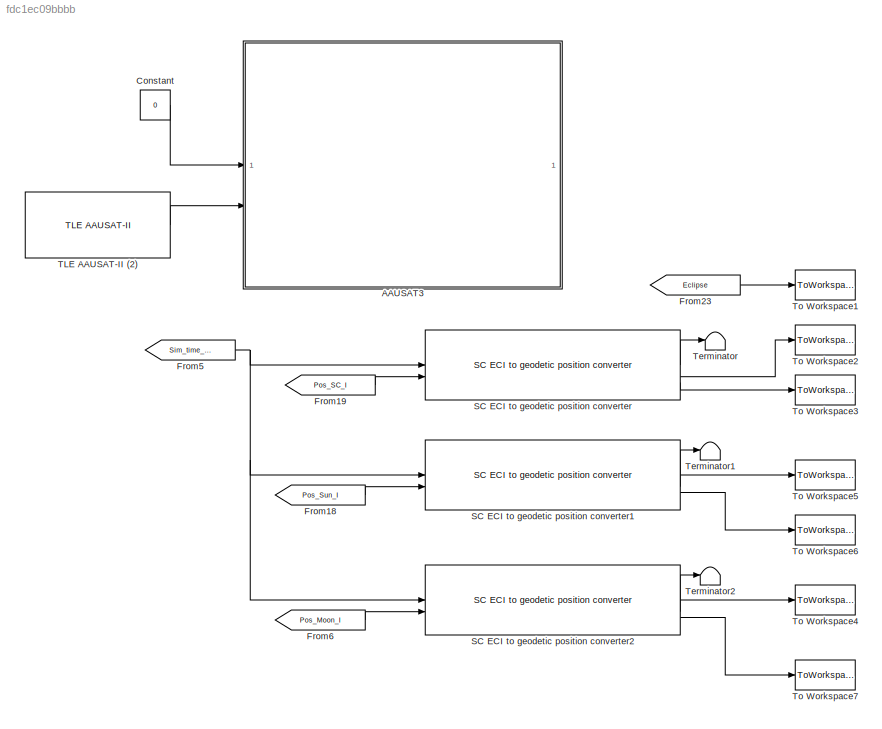
MODEL mdl_fdc1ec09bbbb
KIND model
CONFIG AbsTol = auto
CONFIG EnableMultiTasking = on
CONFIG FixedStep = auto
CONFIG MaxStep = 1
CONFIG MinStep = auto
CONFIG RelTol = 1e-3
CONFIG SampleTimeConstraint = Unconstrained
CONFIG SolverName = ode45
CONFIG StartTime = 0.0
CONFIG StopTime = 2000.0
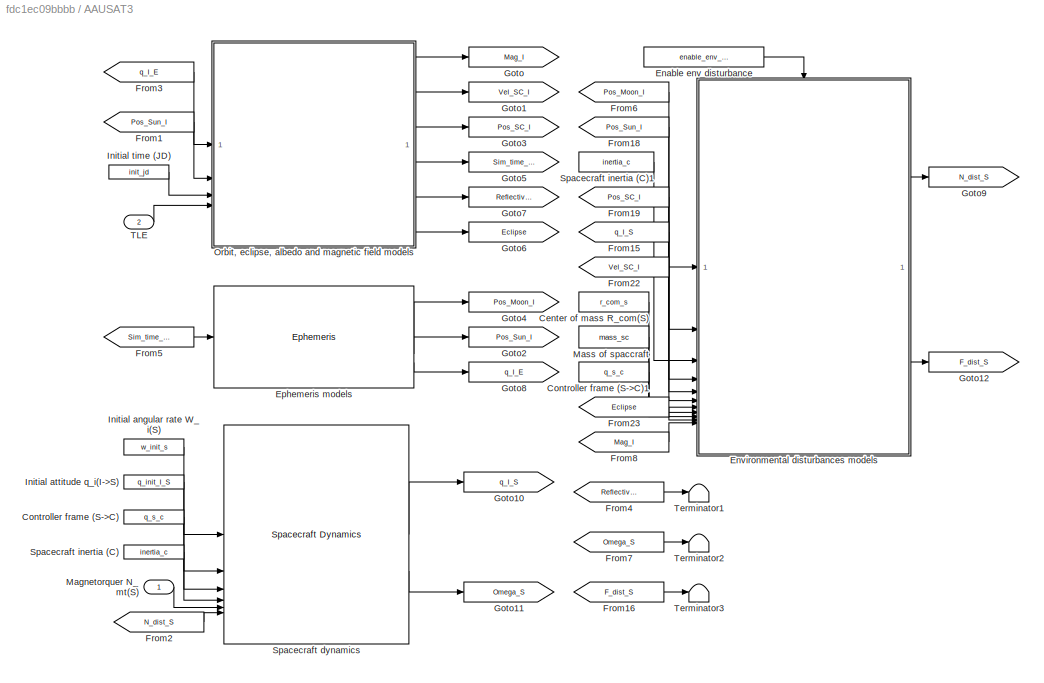
BLOCK [SubSystem] AAUSAT3
  ShowPortLabels = none
BLOCK [Constant] AAUSAT3/Center of mass R_com(S)
  Value = r_com_s
BLOCK [Constant] AAUSAT3/Controller frame (S->C)
  NameLocation = top
  Value = q_s_c
BLOCK [Constant] AAUSAT3/Controller frame (S->C)1
  Value = q_s_c
BLOCK [Constant] AAUSAT3/Enable env disturbance
  Value = enable_env_disturbance
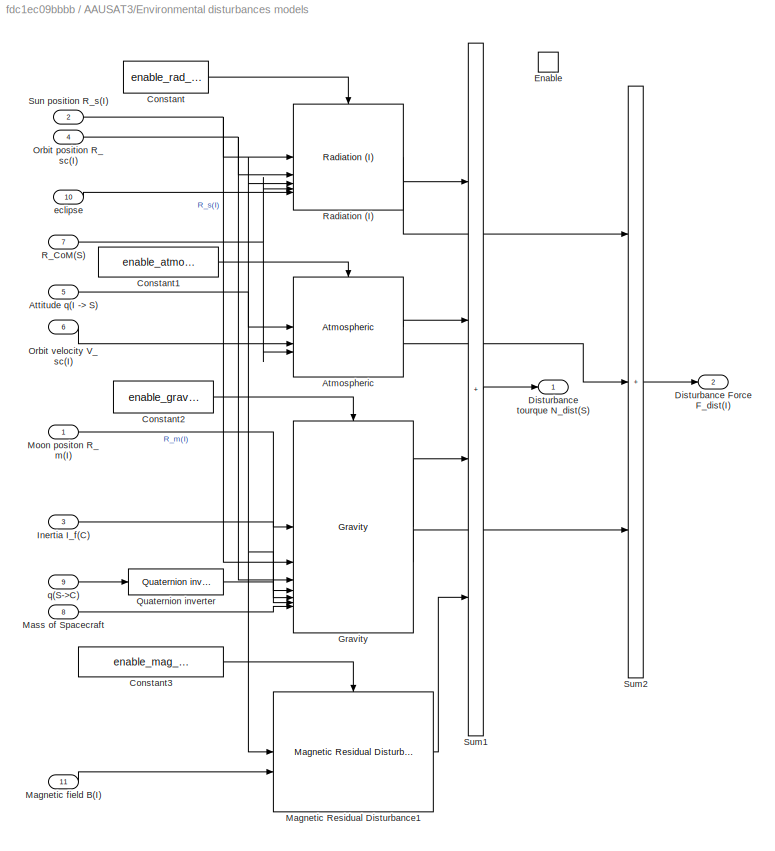
BLOCK [SubSystem] AAUSAT3/Environmental disturbances models
  AncestorBlock = aausat3_lib/Disturbances/Environment Disturbances
BLOCK [Reference] AAUSAT3/Environmental disturbances models/Atmospheric  REF=aausat3_lib/Disturbances/Atmospheric  (lib defined in mdl_4157f6465749, slx_d9305f96731e)
  SourceBlock = aausat3_lib/Disturbances/Atmospheric
  SourceProductName = AAUSAT3
BLOCK [Inport] AAUSAT3/Environmental disturbances models/Attitude q(I -> S)
  Port = 5
BLOCK [Constant] AAUSAT3/Environmental disturbances models/Constant
  Value = enable_rad_dist
BLOCK [Constant] AAUSAT3/Environmental disturbances models/Constant1
  Value = enable_atmospheric_dist
BLOCK [Constant] AAUSAT3/Environmental disturbances models/Constant2
  Value = enable_gravity_dist
BLOCK [Constant] AAUSAT3/Environmental disturbances models/Constant3
  Value = enable_mag_residual_dist
BLOCK [Outport] AAUSAT3/Environmental disturbances models/Disturbance Force F_dist(I)
  Port = 2
BLOCK [Outport] AAUSAT3/Environmental disturbances models/Disturbance tourque N_dist(S)
BLOCK [EnablePort] AAUSAT3/Environmental disturbances models/Enable
BLOCK [Reference] AAUSAT3/Environmental disturbances models/Gravity  REF=aausat3_lib/Disturbances/Gravity  (lib defined in mdl_4157f6465749, slx_d9305f96731e)
  SourceBlock = aausat3_lib/Disturbances/Gravity
  SourceProductName = AAUSAT3
BLOCK [Inport] AAUSAT3/Environmental disturbances models/Inertia I_f(C)
  NameLocation = top
  Port = 3
BLOCK [Reference] AAUSAT3/Environmental disturbances models/Magnetic Residual Disturbance1  REF=aausat3_lib/Disturbances/Magnetic Residual Disturbance  (lib defined in mdl_4157f6465749, slx_d9305f96731e)
  SourceBlock = aausat3_lib/Disturbances/Magnetic Residual Disturbance
  SourceProductName = AAUSAT3
BLOCK [Inport] AAUSAT3/Environmental disturbances models/Magnetic field B(I)
  Port = 11
BLOCK [Inport] AAUSAT3/Environmental disturbances models/Mass of Spacecraft
  Port = 8
BLOCK [Inport] AAUSAT3/Environmental disturbances models/Moon positon R_m(I)
  NameLocation = top
BLOCK [Inport] AAUSAT3/Environmental disturbances models/Orbit position R_sc(I)
  Port = 4
BLOCK [Inport] AAUSAT3/Environmental disturbances models/Orbit velocity V_sc(I)
  Port = 6
BLOCK [Reference] AAUSAT3/Environmental disturbances models/Quaternion inverter  REF=aausat3_lib/Math Utilities/Quaternion operations/Quaternion inverter  (lib defined in mdl_4157f6465749, slx_d9305f96731e)
  SourceBlock = aausat3_lib/Math Utilities/Quaternion operations/Quaternion inverter
  SourceProductName = AAUSAT3
  SourceType = SubSystem
BLOCK [Inport] AAUSAT3/Environmental disturbances models/R_CoM(S)
  Port = 7
BLOCK [Reference] AAUSAT3/Environmental disturbances models/Radiation (I)  REF=aausat3_lib/Disturbances/Radiation (I)  (lib defined in mdl_4157f6465749, slx_d9305f96731e)
  SourceBlock = aausat3_lib/Disturbances/Radiation (I)
  SourceProductName = AAUSAT3
BLOCK [Sum] AAUSAT3/Environmental disturbances models/Sum1
  IconShape = rectangular
  Inputs = ++++
  SaturateOnIntegerOverflow = on
BLOCK [Sum] AAUSAT3/Environmental disturbances models/Sum2
  IconShape = rectangular
  Inputs = +++
  SaturateOnIntegerOverflow = on
BLOCK [Inport] AAUSAT3/Environmental disturbances models/Sun position R_s(I)
  NameLocation = top
  Port = 2
BLOCK [Inport] AAUSAT3/Environmental disturbances models/eclipse
  Port = 10
BLOCK [Inport] AAUSAT3/Environmental disturbances models/q(S->C)
  NameLocation = top
  Port = 9
BLOCK [Reference] AAUSAT3/Ephemeris models  REF=aausat3_lib/Orbit and Ephemeris/Ephemeris  (lib defined in mdl_4157f6465749, slx_d9305f96731e)
  SourceBlock = aausat3_lib/Orbit and Ephemeris/Ephemeris
  SourceProductName = AAUSAT3
  SourceType = SubSystem
BLOCK [From] AAUSAT3/From1
  CloseFcn = tagdialog Close
  GotoTag = Pos_Sun_I
  TagVisibility = global
BLOCK [From] AAUSAT3/From15
  CloseFcn = tagdialog Close
  GotoTag = q_I_S
  TagVisibility = global
BLOCK [From] AAUSAT3/From16
  CloseFcn = tagdialog Close
  GotoTag = F_dist_S
  TagVisibility = global
BLOCK [From] AAUSAT3/From18
  CloseFcn = tagdialog Close
  GotoTag = Pos_Sun_I
  TagVisibility = global
BLOCK [From] AAUSAT3/From19
  CloseFcn = tagdialog Close
  GotoTag = Pos_SC_I
  TagVisibility = global
BLOCK [From] AAUSAT3/From2
  CloseFcn = tagdialog Close
  GotoTag = N_dist_S
  TagVisibility = global
BLOCK [From] AAUSAT3/From22
  CloseFcn = tagdialog Close
  GotoTag = Vel_SC_I
  TagVisibility = global
BLOCK [From] AAUSAT3/From23
  CloseFcn = tagdialog Close
  GotoTag = Eclipse
  TagVisibility = global
BLOCK [From] AAUSAT3/From3
  CloseFcn = tagdialog Close
  GotoTag = q_I_E
  TagVisibility = global
BLOCK [From] AAUSAT3/From4
  CloseFcn = tagdialog Close
  GotoTag = Reflectivity
  TagVisibility = global
BLOCK [From] AAUSAT3/From5
  CloseFcn = tagdialog Close
  GotoTag = Sim_time_JD
  TagVisibility = global
BLOCK [From] AAUSAT3/From6
  CloseFcn = tagdialog Close
  GotoTag = Pos_Moon_I
  TagVisibility = global
BLOCK [From] AAUSAT3/From7
  CloseFcn = tagdialog Close
  GotoTag = Omega_S
  TagVisibility = global
BLOCK [From] AAUSAT3/From8
  CloseFcn = tagdialog Close
  GotoTag = Mag_I
  TagVisibility = global
BLOCK [Goto] AAUSAT3/Goto
  GotoTag = Mag_I
  TagVisibility = global
BLOCK [Goto] AAUSAT3/Goto1
  GotoTag = Vel_SC_I
  TagVisibility = global
BLOCK [Goto] AAUSAT3/Goto10
  GotoTag = q_I_S
  TagVisibility = global
BLOCK [Goto] AAUSAT3/Goto11
  GotoTag = Omega_S
  TagVisibility = global
BLOCK [Goto] AAUSAT3/Goto12
  GotoTag = F_dist_S
  TagVisibility = global
BLOCK [Goto] AAUSAT3/Goto2
  GotoTag = Pos_Sun_I
  TagVisibility = global
BLOCK [Goto] AAUSAT3/Goto3
  GotoTag = Pos_SC_I
  TagVisibility = global
BLOCK [Goto] AAUSAT3/Goto4
  GotoTag = Pos_Moon_I
  TagVisibility = global
BLOCK [Goto] AAUSAT3/Goto5
  GotoTag = Sim_time_JD
  TagVisibility = global
BLOCK [Goto] AAUSAT3/Goto6
  GotoTag = Eclipse
  TagVisibility = global
BLOCK [Goto] AAUSAT3/Goto7
  GotoTag = Reflectivity
  TagVisibility = global
BLOCK [Goto] AAUSAT3/Goto8
  GotoTag = q_I_E
  TagVisibility = global
BLOCK [Goto] AAUSAT3/Goto9
  GotoTag = N_dist_S
  TagVisibility = global
BLOCK [Constant] AAUSAT3/Initial angular rate W_i(S)
  NameLocation = top
  Value = w_init_s
BLOCK [Constant] AAUSAT3/Initial attitude q_i(I->S)
  NameLocation = top
  Value = q_init_I_S
BLOCK [Constant] AAUSAT3/Initial time (JD)
  NameLocation = top
  Value = init_jd
BLOCK [Inport] AAUSAT3/Magnetorquer N_mt(S)
  NameLocation = top
BLOCK [Constant] AAUSAT3/Mass of spaccraft
  Value = mass_sc
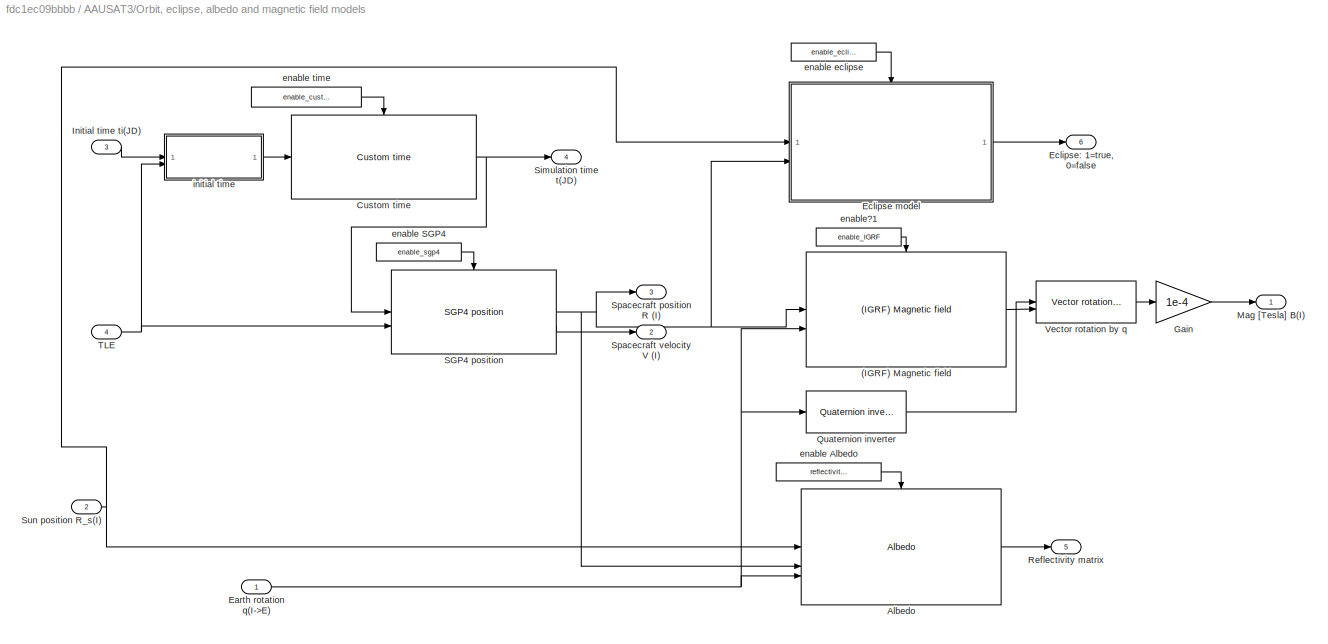
BLOCK [SubSystem] AAUSAT3/Orbit, eclipse, albedo and magnetic field models
  AncestorBlock = aausat3_lib/Orbit and Ephemeris/Orbit and Magnetic field models
BLOCK [Reference] AAUSAT3/Orbit, eclipse, albedo and magnetic field models/(IGRF) Magnetic field  REF=aausat3_lib/Orbit and Ephemeris/(IGRF) Magnetic field  (lib defined in mdl_4157f6465749, slx_d9305f96731e)
  SourceBlock = aausat3_lib/Orbit and Ephemeris/(IGRF) Magnetic field
  SourceProductName = AAUSAT3
  SourceType = SubSystem
BLOCK [Reference] AAUSAT3/Orbit, eclipse, albedo and magnetic field models/Albedo  REF=aausat3_lib/Orbit and Ephemeris/Albedo  (lib defined in mdl_4157f6465749, slx_d9305f96731e)
  SourceBlock = aausat3_lib/Orbit and Ephemeris/Albedo
  SourceProductName = AAUSAT3
BLOCK [Reference] AAUSAT3/Orbit, eclipse, albedo and magnetic field models/Custom time  REF=aausat3_lib/Orbit and Ephemeris/Custom time  (lib defined in mdl_4157f6465749, slx_d9305f96731e)
  SourceBlock = aausat3_lib/Orbit and Ephemeris/Custom time
  SourceProductName = AAUSAT3
  SourceType = SubSystem
BLOCK [Inport] AAUSAT3/Orbit, eclipse, albedo and magnetic field models/Earth rotation q(I->E)
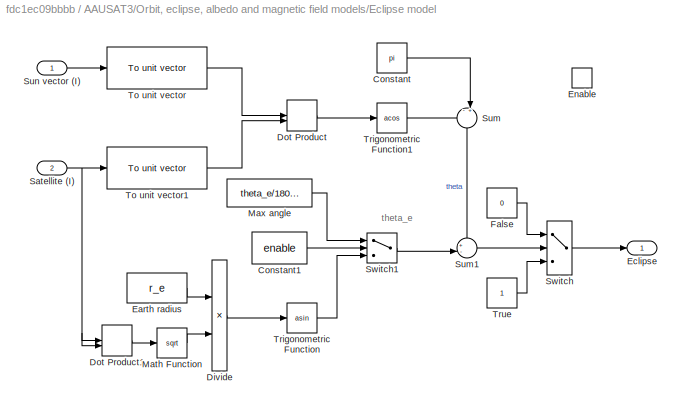
BLOCK [SubSystem] AAUSAT3/Orbit, eclipse, albedo and magnetic field models/Eclipse model
  AncestorBlock = aausat3_lib/Orbit and Ephemeris/Eclipse model
BLOCK [Constant] AAUSAT3/Orbit, eclipse, albedo and magnetic field models/Eclipse model/Constant
  Value = pi
BLOCK [Constant] AAUSAT3/Orbit, eclipse, albedo and magnetic field models/Eclipse model/Constant1
  Value = enable
BLOCK [Product] AAUSAT3/Orbit, eclipse, albedo and magnetic field models/Eclipse model/Divide
  Inputs = */
BLOCK [DotProduct] AAUSAT3/Orbit, eclipse, albedo and magnetic field models/Eclipse model/Dot Product
  OutDataTypeStr = Inherit: Inherit via internal rule
BLOCK [DotProduct] AAUSAT3/Orbit, eclipse, albedo and magnetic field models/Eclipse model/Dot Product1
  OutDataTypeStr = Inherit: Inherit via internal rule
BLOCK [Constant] AAUSAT3/Orbit, eclipse, albedo and magnetic field models/Eclipse model/Earth radius
  Value = r_e
BLOCK [Outport] AAUSAT3/Orbit, eclipse, albedo and magnetic field models/Eclipse model/Eclipse
  PortDimensions = 1
BLOCK [EnablePort] AAUSAT3/Orbit, eclipse, albedo and magnetic field models/Eclipse model/Enable
BLOCK [Constant] AAUSAT3/Orbit, eclipse, albedo and magnetic field models/Eclipse model/False
  Value = 0
BLOCK [Math] AAUSAT3/Orbit, eclipse, albedo and magnetic field models/Eclipse model/Math Function
  Operator = sqrt
  SignedPower = on
BLOCK [Constant] AAUSAT3/Orbit, eclipse, albedo and magnetic field models/Eclipse model/Max angle
  Value = theta_e/180*pi
BLOCK [Inport] AAUSAT3/Orbit, eclipse, albedo and magnetic field models/Eclipse model/Satellite (I)
  Port = 2
BLOCK [Sum] AAUSAT3/Orbit, eclipse, albedo and magnetic field models/Eclipse model/Sum
  Inputs = -+|
  NameLocation = left
BLOCK [Sum] AAUSAT3/Orbit, eclipse, albedo and magnetic field models/Eclipse model/Sum1
  Inputs = +-|
BLOCK [Inport] AAUSAT3/Orbit, eclipse, albedo and magnetic field models/Eclipse model/Sun vector (I)
BLOCK [Switch] AAUSAT3/Orbit, eclipse, albedo and magnetic field models/Eclipse model/Switch
  InputSameDT = off
  SaturateOnIntegerOverflow = off
BLOCK [Switch] AAUSAT3/Orbit, eclipse, albedo and magnetic field models/Eclipse model/Switch1
  Criteria = u2 > Threshold
  InputSameDT = off
  SaturateOnIntegerOverflow = off
BLOCK [Reference] AAUSAT3/Orbit, eclipse, albedo and magnetic field models/Eclipse model/To unit vector  REF=aausat3_lib/Math Utilities/Vector operations/To unit vector  (lib defined in mdl_4157f6465749, slx_d9305f96731e)
  SourceBlock = aausat3_lib/Math Utilities/Vector operations/To unit vector
  SourceProductName = AAUSAT3
  SourceType = SubSystem
BLOCK [Reference] AAUSAT3/Orbit, eclipse, albedo and magnetic field models/Eclipse model/To unit vector1  REF=aausat3_lib/Math Utilities/Vector operations/To unit vector  (lib defined in mdl_4157f6465749, slx_d9305f96731e)
  SourceBlock = aausat3_lib/Math Utilities/Vector operations/To unit vector
  SourceProductName = AAUSAT3
  SourceType = SubSystem
BLOCK [Trigonometry] AAUSAT3/Orbit, eclipse, albedo and magnetic field models/Eclipse model/Trigonometric Function
  Operator = asin
BLOCK [Trigonometry] AAUSAT3/Orbit, eclipse, albedo and magnetic field models/Eclipse model/Trigonometric Function1
  Operator = acos
BLOCK [Constant] AAUSAT3/Orbit, eclipse, albedo and magnetic field models/Eclipse model/True
BLOCK [Outport] AAUSAT3/Orbit, eclipse, albedo and magnetic field models/Eclipse: 1=true, 0=false
  Port = 6
  PortDimensions = 1
BLOCK [Gain] AAUSAT3/Orbit, eclipse, albedo and magnetic field models/Gain
  Gain = 1e-4
BLOCK [Inport] AAUSAT3/Orbit, eclipse, albedo and magnetic field models/Initial time ti(JD)
  Port = 3
BLOCK [Outport] AAUSAT3/Orbit, eclipse, albedo and magnetic field models/Mag [Tesla] B(I)
BLOCK [Reference] AAUSAT3/Orbit, eclipse, albedo and magnetic field models/Quaternion inverter  REF=aausat3_lib/Math Utilities/Quaternion operations/Quaternion inverter  (lib defined in mdl_4157f6465749, slx_d9305f96731e)
  SourceBlock = aausat3_lib/Math Utilities/Quaternion operations/Quaternion inverter
  SourceProductName = AAUSAT3
  SourceType = SubSystem
BLOCK [Outport] AAUSAT3/Orbit, eclipse, albedo and magnetic field models/Reflectivity matrix
  Port = 5
BLOCK [Reference] AAUSAT3/Orbit, eclipse, albedo and magnetic field models/SGP4 position  REF=aausat3_lib/Orbit and Ephemeris/SGP4 position  (lib defined in mdl_4157f6465749, slx_d9305f96731e)
  SourceBlock = aausat3_lib/Orbit and Ephemeris/SGP4 position
  SourceProductName = AAUSAT3
  SourceType = SubSystem
BLOCK [Outport] AAUSAT3/Orbit, eclipse, albedo and magnetic field models/Simulation time t(JD)
  Port = 4
BLOCK [Outport] AAUSAT3/Orbit, eclipse, albedo and magnetic field models/Spacecraft position R (I)
  NameLocation = top
  Port = 3
BLOCK [Outport] AAUSAT3/Orbit, eclipse, albedo and magnetic field models/Spacecraft velocity V (I)
  Port = 2
BLOCK [Inport] AAUSAT3/Orbit, eclipse, albedo and magnetic field models/Sun position R_s(I)
  Port = 2
BLOCK [Inport] AAUSAT3/Orbit, eclipse, albedo and magnetic field models/TLE
  Port = 4
BLOCK [Reference] AAUSAT3/Orbit, eclipse, albedo and magnetic field models/Vector rotation by q  REF=aausat3_lib/Math Utilities/Quaternion operations/Vector rotation by q  (lib defined in mdl_4157f6465749, slx_d9305f96731e)
  SourceBlock = aausat3_lib/Math Utilities/Quaternion operations/Vector rotation by q
  SourceProductName = AAUSAT3
  SourceType = SubSystem
BLOCK [Constant] AAUSAT3/Orbit, eclipse, albedo and magnetic field models/enable Albedo
  NameLocation = top
  Value = reflectivity_enabled
BLOCK [Constant] AAUSAT3/Orbit, eclipse, albedo and magnetic field models/enable SGP4
  NameLocation = top
  Value = enable_sgp4
BLOCK [Constant] AAUSAT3/Orbit, eclipse, albedo and magnetic field models/enable eclipse
  NameLocation = top
  Value = enable_eclipse
BLOCK [Constant] AAUSAT3/Orbit, eclipse, albedo and magnetic field models/enable time
  NameLocation = top
  Value = enable_custom_time
BLOCK [Constant] AAUSAT3/Orbit, eclipse, albedo and magnetic field models/enable?1
  NameLocation = top
  Value = enable_IGRF
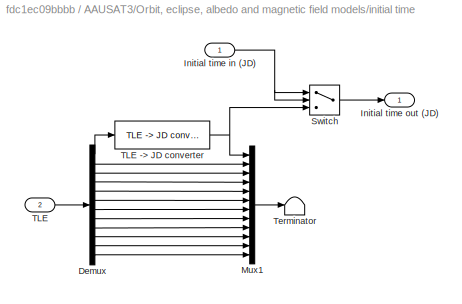
BLOCK [SubSystem] AAUSAT3/Orbit, eclipse, albedo and magnetic field models/initial time
BLOCK [Demux] AAUSAT3/Orbit, eclipse, albedo and magnetic field models/initial time/Demux
  Outputs = 12
BLOCK [Inport] AAUSAT3/Orbit, eclipse, albedo and magnetic field models/initial time/Initial time in (JD)
BLOCK [Outport] AAUSAT3/Orbit, eclipse, albedo and magnetic field models/initial time/Initial time out (JD)
BLOCK [Mux] AAUSAT3/Orbit, eclipse, albedo and magnetic field models/initial time/Mux1
  DisplayOption = bar
  Inputs = 12
BLOCK [Switch] AAUSAT3/Orbit, eclipse, albedo and magnetic field models/initial time/Switch
  Criteria = u2 > Threshold
  InputSameDT = off
  SaturateOnIntegerOverflow = off
BLOCK [Inport] AAUSAT3/Orbit, eclipse, albedo and magnetic field models/initial time/TLE
  Port = 2
BLOCK [Reference] AAUSAT3/Orbit, eclipse, albedo and magnetic field models/initial time/TLE -> JD converter  REF=aausat3_lib/Other Model Utilities/TLE -> JD converter  (lib defined in mdl_4157f6465749, slx_d9305f96731e)
  NameLocation = top
  SourceBlock = aausat3_lib/Other Model Utilities/TLE -> JD converter
  SourceProductName = AAUSAT3
  SourceType = SubSystem
BLOCK [Terminator] AAUSAT3/Orbit, eclipse, albedo and magnetic field models/initial time/Terminator
BLOCK [Reference] AAUSAT3/Spacecraft dynamics  REF=aausat3_lib/Dynamics and Kinematics/Spacecraft Dynamics  (lib defined in mdl_4157f6465749, slx_d9305f96731e)
  SourceBlock = aausat3_lib/Dynamics and Kinematics/Spacecraft Dynamics
  SourceProductName = AAUSAT3
  SourceType = SubSystem
BLOCK [Constant] AAUSAT3/Spacecraft inertia (C)
  NameLocation = top
  Value = inertia_c
BLOCK [Constant] AAUSAT3/Spacecraft inertia (C)1
  Value = inertia_c
BLOCK [Inport] AAUSAT3/TLE
  NameLocation = top
  Port = 2
BLOCK [Terminator] AAUSAT3/Terminator1
BLOCK [Terminator] AAUSAT3/Terminator2
BLOCK [Terminator] AAUSAT3/Terminator3
BLOCK [Constant] Constant
  Value = 0
BLOCK [From] From18
  CloseFcn = tagdialog Close
  GotoTag = Pos_Sun_I
  TagVisibility = global
BLOCK [From] From19
  CloseFcn = tagdialog Close
  GotoTag = Pos_SC_I
  TagVisibility = global
BLOCK [From] From23
  CloseFcn = tagdialog Close
  GotoTag = Eclipse
  TagVisibility = global
BLOCK [From] From5
  CloseFcn = tagdialog Close
  GotoTag = Sim_time_JD
  TagVisibility = global
BLOCK [From] From6
  CloseFcn = tagdialog Close
  GotoTag = Pos_Moon_I
  TagVisibility = global
BLOCK [Reference] SC ECI to geodetic position converter  REF=aausat3_lib/Other Model Utilities/SC ECI to geodetic position converter  (lib defined in mdl_4157f6465749, slx_d9305f96731e)
  SourceBlock = aausat3_lib/Other Model Utilities/SC ECI to geodetic position converter
  SourceProductName = AAUSAT3
BLOCK [Reference] SC ECI to geodetic position converter1  REF=aausat3_lib/Other Model Utilities/SC ECI to geodetic position converter  (lib defined in mdl_4157f6465749, slx_d9305f96731e)
  SourceBlock = aausat3_lib/Other Model Utilities/SC ECI to geodetic position converter
  SourceProductName = AAUSAT3
BLOCK [Reference] SC ECI to geodetic position converter2  REF=aausat3_lib/Other Model Utilities/SC ECI to geodetic position converter  (lib defined in mdl_4157f6465749, slx_d9305f96731e)
  SourceBlock = aausat3_lib/Other Model Utilities/SC ECI to geodetic position converter
  SourceProductName = AAUSAT3
BLOCK [Reference] TLE AAUSAT-II (2)  REF=aausat3_lib/Orbit and Ephemeris/TLE AAUSAT-II  (lib defined in mdl_4157f6465749, slx_d9305f96731e)
  SourceBlock = aausat3_lib/Orbit and Ephemeris/TLE AAUSAT-II
  SourceProductName = AAUSAT3
BLOCK [Terminator] Terminator
BLOCK [Terminator] Terminator1
BLOCK [Terminator] Terminator2
BLOCK [ToWorkspace] To Workspace1
  MaxDataPoints = inf
  SampleTime = 1
  VariableName = eclipse
BLOCK [ToWorkspace] To Workspace2
  MaxDataPoints = inf
  SampleTime = 1
  VariableName = sc_longitude
BLOCK [ToWorkspace] To Workspace3
  MaxDataPoints = inf
  SampleTime = 1
  VariableName = sc_latitude
BLOCK [ToWorkspace] To Workspace4
  MaxDataPoints = inf
  SampleTime = 1
  VariableName = moon_longitude
BLOCK [ToWorkspace] To Workspace5
  MaxDataPoints = inf
  SampleTime = 1
  VariableName = sun_longitude
BLOCK [ToWorkspace] To Workspace6
  MaxDataPoints = inf
  SampleTime = 1
  VariableName = sun_latitude
BLOCK [ToWorkspace] To Workspace7
  MaxDataPoints = inf
  SampleTime = 1
  VariableName = moon_latitude
ANNOTATION AAUSAT3/Orbit, eclipse, albedo and magnetic field models/Eclipse model: theta_e
LINE AAUSAT3/Center of mass R_com(S):1 -> AAUSAT3/Environmental disturbances models:7
LINE AAUSAT3/Controller frame (S->C)1:1 -> AAUSAT3/Environmental disturbances models:9
LINE AAUSAT3/Controller frame (S->C):1 -> AAUSAT3/Spacecraft dynamics:3
LINE AAUSAT3/Enable env disturbance:1 -> AAUSAT3/Environmental disturbances models:enable
LINE AAUSAT3/Environmental disturbances models:1 -> AAUSAT3/Goto9:1
LINE AAUSAT3/Environmental disturbances models:2 -> AAUSAT3/Goto12:1
LINE AAUSAT3/Ephemeris models:1 -> AAUSAT3/Goto4:1
LINE AAUSAT3/Ephemeris models:2 -> AAUSAT3/Goto2:1
LINE AAUSAT3/Ephemeris models:3 -> AAUSAT3/Goto8:1
LINE AAUSAT3/From15:1 -> AAUSAT3/Environmental disturbances models:5
LINE AAUSAT3/From16:1 -> AAUSAT3/Terminator3:1
LINE AAUSAT3/From18:1 -> AAUSAT3/Environmental disturbances models:2
LINE AAUSAT3/From19:1 -> AAUSAT3/Environmental disturbances models:4
LINE AAUSAT3/From1:1 -> AAUSAT3/Orbit, eclipse, albedo and magnetic field models:2
LINE AAUSAT3/From22:1 -> AAUSAT3/Environmental disturbances models:6
LINE AAUSAT3/From23:1 -> AAUSAT3/Environmental disturbances models:10
LINE AAUSAT3/From2:1 -> AAUSAT3/Spacecraft dynamics:6
LINE AAUSAT3/From3:1 -> AAUSAT3/Orbit, eclipse, albedo and magnetic field models:1
LINE AAUSAT3/From4:1 -> AAUSAT3/Terminator1:1
LINE AAUSAT3/From5:1 -> AAUSAT3/Ephemeris models:1
LINE AAUSAT3/From6:1 -> AAUSAT3/Environmental disturbances models:1
LINE AAUSAT3/From7:1 -> AAUSAT3/Terminator2:1
LINE AAUSAT3/From8:1 -> AAUSAT3/Environmental disturbances models:11
LINE AAUSAT3/Initial angular rate W_i(S):1 -> AAUSAT3/Spacecraft dynamics:1
LINE AAUSAT3/Initial attitude q_i(I->S):1 -> AAUSAT3/Spacecraft dynamics:2
LINE AAUSAT3/Initial time (JD):1 -> AAUSAT3/Orbit, eclipse, albedo and magnetic field models:3
LINE AAUSAT3/Magnetorquer N_mt(S):1 -> AAUSAT3/Spacecraft dynamics:5
LINE AAUSAT3/Mass of spaccraft:1 -> AAUSAT3/Environmental disturbances models:8
LINE AAUSAT3/Orbit, eclipse, albedo and magnetic field models:1 -> AAUSAT3/Goto:1
LINE AAUSAT3/Orbit, eclipse, albedo and magnetic field models:2 -> AAUSAT3/Goto1:1
LINE AAUSAT3/Orbit, eclipse, albedo and magnetic field models:3 -> AAUSAT3/Goto3:1
LINE AAUSAT3/Orbit, eclipse, albedo and magnetic field models:4 -> AAUSAT3/Goto5:1
LINE AAUSAT3/Orbit, eclipse, albedo and magnetic field models:5 -> AAUSAT3/Goto7:1
LINE AAUSAT3/Orbit, eclipse, albedo and magnetic field models:6 -> AAUSAT3/Goto6:1
LINE AAUSAT3/Spacecraft dynamics:1 -> AAUSAT3/Goto10:1
LINE AAUSAT3/Spacecraft dynamics:2 -> AAUSAT3/Goto11:1
LINE AAUSAT3/Spacecraft inertia (C)1:1 -> AAUSAT3/Environmental disturbances models:3
LINE AAUSAT3/Spacecraft inertia (C):1 -> AAUSAT3/Spacecraft dynamics:4
LINE AAUSAT3/TLE:1 -> AAUSAT3/Orbit, eclipse, albedo and magnetic field models:4
LINE Constant:1 -> AAUSAT3:1
LINE From18:1 -> SC ECI to geodetic position converter1:2
LINE From19:1 -> SC ECI to geodetic position converter:2
LINE From23:1 -> To Workspace1:1
NET From5:1 -> SC ECI to geodetic position converter1:1, SC ECI to geodetic position converter2:1, SC ECI to geodetic position converter:1
LINE From6:1 -> SC ECI to geodetic position converter2:2
LINE SC ECI to geodetic position converter1:1 -> Terminator1:1
LINE SC ECI to geodetic position converter1:2 -> To Workspace5:1
LINE SC ECI to geodetic position converter1:3 -> To Workspace6:1
LINE SC ECI to geodetic position converter2:1 -> Terminator2:1
LINE SC ECI to geodetic position converter2:2 -> To Workspace4:1
LINE SC ECI to geodetic position converter2:3 -> To Workspace7:1
LINE SC ECI to geodetic position converter:1 -> Terminator:1
LINE SC ECI to geodetic position converter:2 -> To Workspace2:1
LINE SC ECI to geodetic position converter:3 -> To Workspace3:1
LINE TLE AAUSAT-II (2):1 -> AAUSAT3:2
note: NET lines group one-source signal fan-out (src -> all destinations, sorted); 1:1 wires keep LINE
